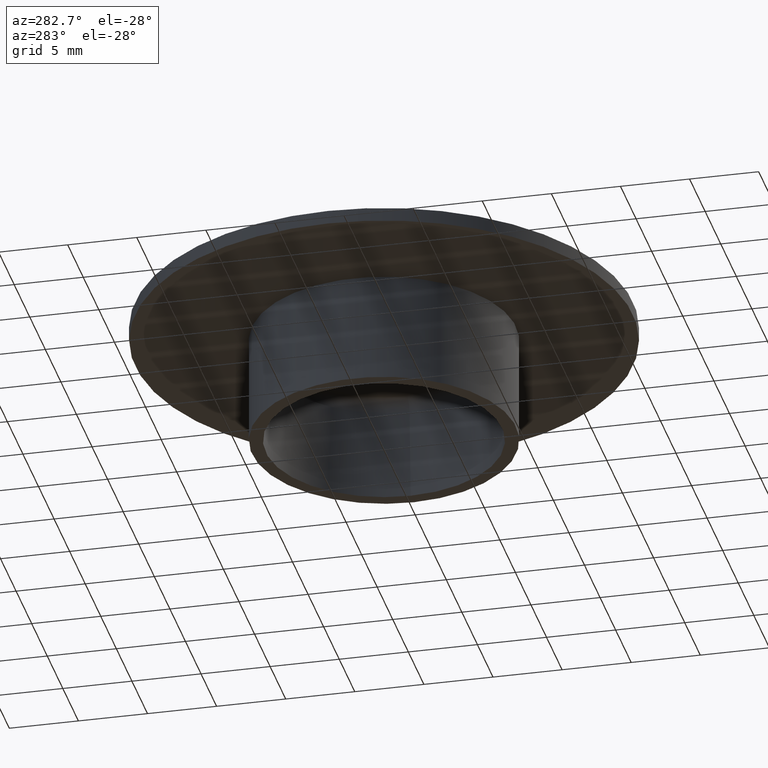
[diagram: clean part render]
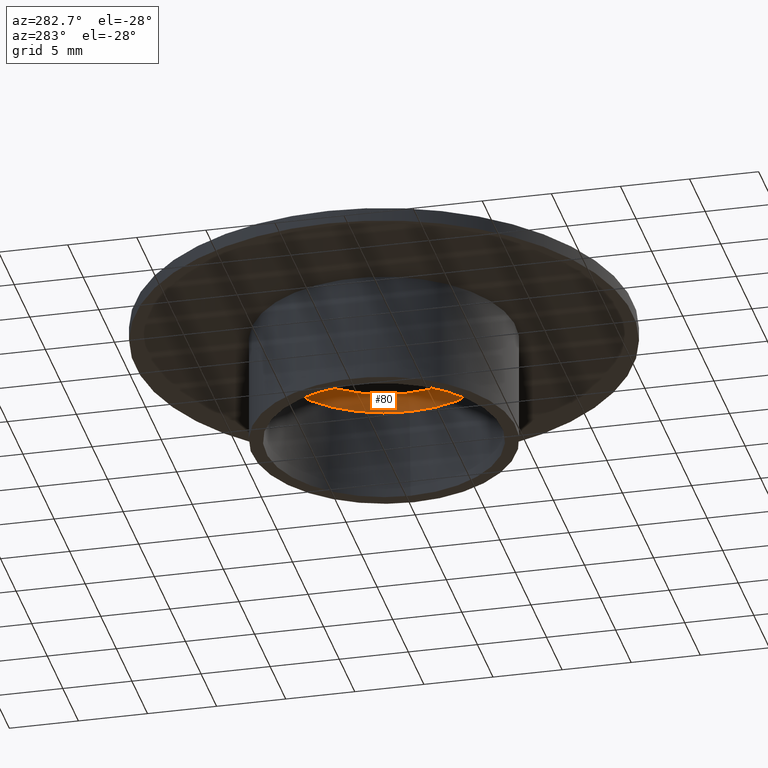
[diagram: same view with one face highlighted and labeled with its STEP entity id]
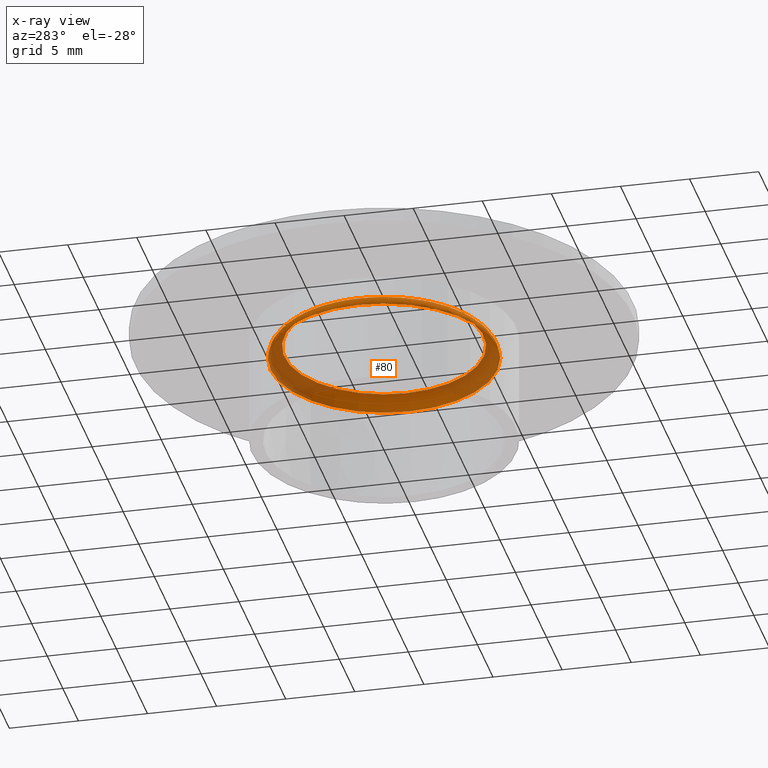
[diagram: x-ray of the same camera — body ghosted, the highlighted face saturated]
A machine part, auxiliary view. The second image highlights one B-rep face of the part: STEP entity #80.
The next image is the same camera in x-ray: the body ghosted, the highlighted face saturated — about 39% of this face is hidden behind the body in this view.
In plain terms, the highlighted toroidal blend (fillet) surface has major radius 7.208 mm and minor (blend) radius 1 mm.
Its self-contained STEP definition (entity closure, byte-faithful):
#80 = ADVANCED_FACE( '', ( #99, #100 ), #101, .F. );
#99 = FACE_OUTER_BOUND( '', #121, .T. );
#100 = FACE_OUTER_BOUND( '', #122, .T. );
#101 = TOROIDAL_SURFACE( '', #123, 7.20797708866229, 1.00000000000000 );
#121 = EDGE_LOOP( '', ( #153 ) );
#122 = EDGE_LOOP( '', ( #154 ) );
#123 = AXIS2_PLACEMENT_3D( '', #155, #156, #157 );
#153 = ORIENTED_EDGE( '', *, *, #171, .F. );
#154 = ORIENTED_EDGE( '', *, *, #172, .T. );
#155 = CARTESIAN_POINT( '', ( -3.97997064992273E-016, 0.000000000000000, 6.50000000000000 ) );
#156 = DIRECTION( '', ( -6.12303176911189E-017, 0.000000000000000, 1.00000000000000 ) );
#157 = DIRECTION( '', ( 1.00000000000000, 0.000000000000000, 6.12303176911189E-017 ) );
#171 = EDGE_CURVE( '', #183, #183, #184, .T. );
#172 = EDGE_CURVE( '', #185, #185, #186, .T. );
#183 = VERTEX_POINT( '', #197 );
#184 = CIRCLE( '', #198, 8.20660662341687 );
#185 = VERTEX_POINT( '', #199 );
#186 = CIRCLE( '', #200, 7.20797708866230 );
#197 = CARTESIAN_POINT( '', ( 8.20660662341687, 0.000000000000000, 6.55233595624293 ) );
#198 = AXIS2_PLACEMENT_3D( '', #216, #217, #218 );
#199 = CARTESIAN_POINT( '', ( 7.20797708866230, 0.000000000000000, 7.50000000000000 ) );
#200 = AXIS2_PLACEMENT_3D( '', #219, #220, #221 );
#216 = CARTESIAN_POINT( '', ( -4.01201612219696E-016, 0.000000000000000, 6.55233595624293 ) );
#217 = DIRECTION( '', ( -6.12303176911189E-017, 0.000000000000000, 1.00000000000000 ) );
#218 = DIRECTION( '', ( 1.00000000000000, 0.000000000000000, 6.12303176911189E-017 ) );
#219 = CARTESIAN_POINT( '', ( -4.59227382683391E-016, 0.000000000000000, 7.50000000000000 ) );
#220 = DIRECTION( '', ( -6.12303176911189E-017, 0.000000000000000, 1.00000000000000 ) );
#221 = DIRECTION( '', ( 1.00000000000000, 0.000000000000000, 6.12303176911189E-017 ) );